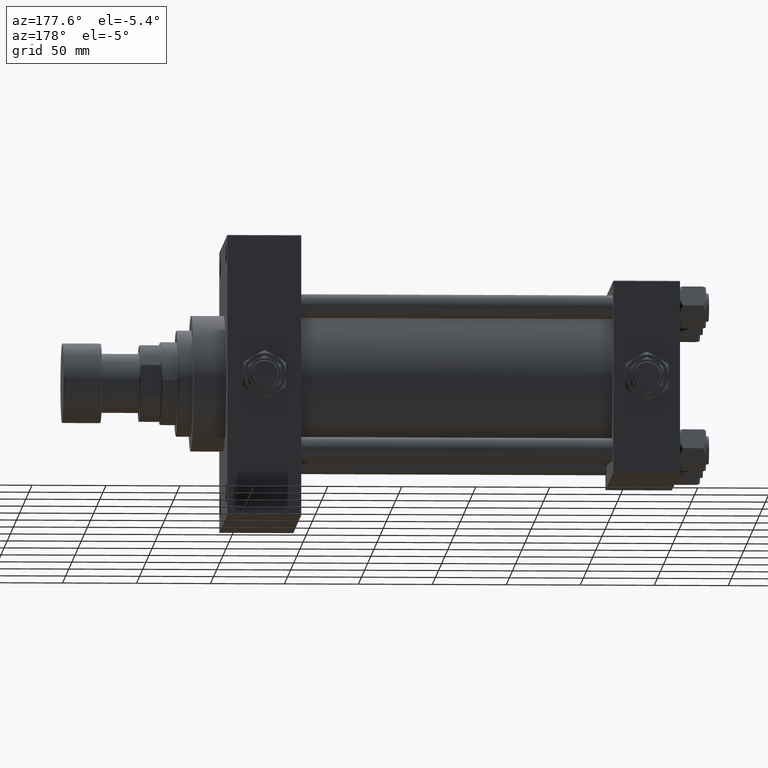
[diagram: clean part render]
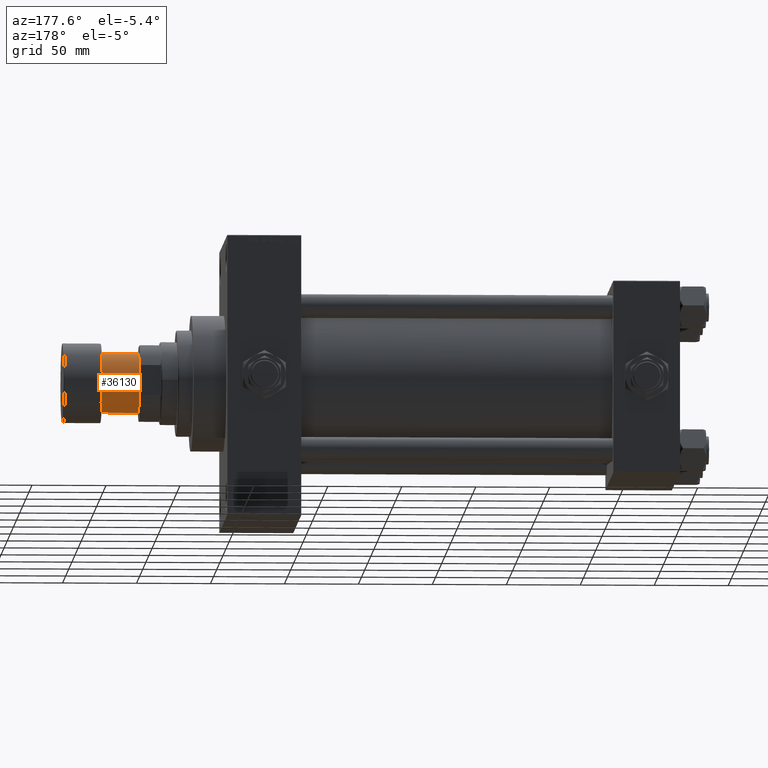
[diagram: same view with one face highlighted and labeled with its STEP entity id]
A machine part, auxiliary view. The second image highlights one B-rep face of the part: STEP entity #36130.
In plain terms, the highlighted cylindrical surface (edge-blend (fillet) strip) has radius 20 mm, axis along (1, 0, 0).
Its self-contained STEP definition (entity closure, byte-faithful):
#537 = CARTESIAN_POINT ( 'NONE',  ( -20.00000000000000000, 2.449293598294706513E-15, -51.50000000000000000 ) ) ;
#5326 = CARTESIAN_POINT ( 'NONE',  ( 20.00000000000000000, 0.000000000000000000, -51.50000000000000000 ) ) ;
#6939 = EDGE_CURVE ( 'NONE', #12006, #37226, #14750, .T. ) ;
#8009 = LINE ( 'NONE', #33618, #19219 ) ;
#8450 = CARTESIAN_POINT ( 'NONE',  ( -20.00000000000000000, 2.449293598294706513E-15, -26.00000000000000000 ) ) ;
#9961 = DIRECTION ( 'NONE',  ( -0.000000000000000000, -0.000000000000000000, 1.000000000000000000 ) ) ;
#10037 = DIRECTION ( 'NONE',  ( -0.000000000000000000, -0.000000000000000000, 1.000000000000000000 ) ) ;
#10562 = EDGE_CURVE ( 'NONE', #29857, #17734, #14899, .T. ) ;
#11028 = VECTOR ( 'NONE', #10037, 1000.000000000000000 ) ;
#12006 = VERTEX_POINT ( 'NONE', #8450 ) ;
#12464 = AXIS2_PLACEMENT_3D ( 'NONE', #26640, #42159, #22817 ) ;
#12833 = DIRECTION ( 'NONE',  ( 0.000000000000000000, 0.000000000000000000, -1.000000000000000000 ) ) ;
#14750 = CIRCLE ( 'NONE', #21250, 20.00000000000000000 ) ;
#14899 = CIRCLE ( 'NONE', #12464, 20.00000000000000000 ) ;
#17734 = VERTEX_POINT ( 'NONE', #5326 ) ;
#18831 = ORIENTED_EDGE ( 'NONE', *, *, #6939, .T. ) ;
#19219 = VECTOR ( 'NONE', #9961, 1000.000000000000000 ) ;
#19464 = AXIS2_PLACEMENT_3D ( 'NONE', #46712, #42887, #47471 ) ;
#20481 = FACE_OUTER_BOUND ( 'NONE', #46860, .T. ) ;
#21250 = AXIS2_PLACEMENT_3D ( 'NONE', #24772, #12833, #24013 ) ;
#22477 = LINE ( 'NONE', #30114, #11028 ) ;
#22817 = DIRECTION ( 'NONE',  ( -1.000000000000000000, 0.000000000000000000, 0.000000000000000000 ) ) ;
#23810 = ORIENTED_EDGE ( 'NONE', *, *, #24922, .F. ) ;
#24013 = DIRECTION ( 'NONE',  ( -1.000000000000000000, 0.000000000000000000, 0.000000000000000000 ) ) ;
#24772 = CARTESIAN_POINT ( 'NONE',  ( 0.000000000000000000, 0.000000000000000000, -26.00000000000000000 ) ) ;
#24922 = EDGE_CURVE ( 'NONE', #17734, #37226, #22477, .T. ) ;
#25503 = CARTESIAN_POINT ( 'NONE',  ( 20.00000000000000000, 0.000000000000000000, -26.00000000000000000 ) ) ;
#26376 = EDGE_CURVE ( 'NONE', #29857, #12006, #8009, .T. ) ;
#26640 = CARTESIAN_POINT ( 'NONE',  ( 0.000000000000000000, 0.000000000000000000, -51.50000000000000000 ) ) ;
#29857 = VERTEX_POINT ( 'NONE', #537 ) ;
#30114 = CARTESIAN_POINT ( 'NONE',  ( 20.00000000000000000, 0.000000000000000000, -51.50000000000000000 ) ) ;
#32121 = ORIENTED_EDGE ( 'NONE', *, *, #10562, .F. ) ;
#33618 = CARTESIAN_POINT ( 'NONE',  ( -20.00000000000000000, 2.449293598294706513E-15, -51.50000000000000000 ) ) ;
#36130 = ADVANCED_FACE ( 'NONE', ( #20481 ), #39572, .T. ) ;
#37226 = VERTEX_POINT ( 'NONE', #25503 ) ;
#37667 = ORIENTED_EDGE ( 'NONE', *, *, #26376, .T. ) ;
#39572 = CYLINDRICAL_SURFACE ( 'NONE', #19464, 20.00000000000000000 ) ;
#42159 = DIRECTION ( 'NONE',  ( 0.000000000000000000, 0.000000000000000000, -1.000000000000000000 ) ) ;
#42887 = DIRECTION ( 'NONE',  ( -0.000000000000000000, -0.000000000000000000, 1.000000000000000000 ) ) ;
#46712 = CARTESIAN_POINT ( 'NONE',  ( 0.000000000000000000, 0.000000000000000000, -51.50000000000000000 ) ) ;
#46860 = EDGE_LOOP ( 'NONE', ( #32121, #37667, #18831, #23810 ) ) ;
#47471 = DIRECTION ( 'NONE',  ( 1.000000000000000000, 0.000000000000000000, 0.000000000000000000 ) ) ;